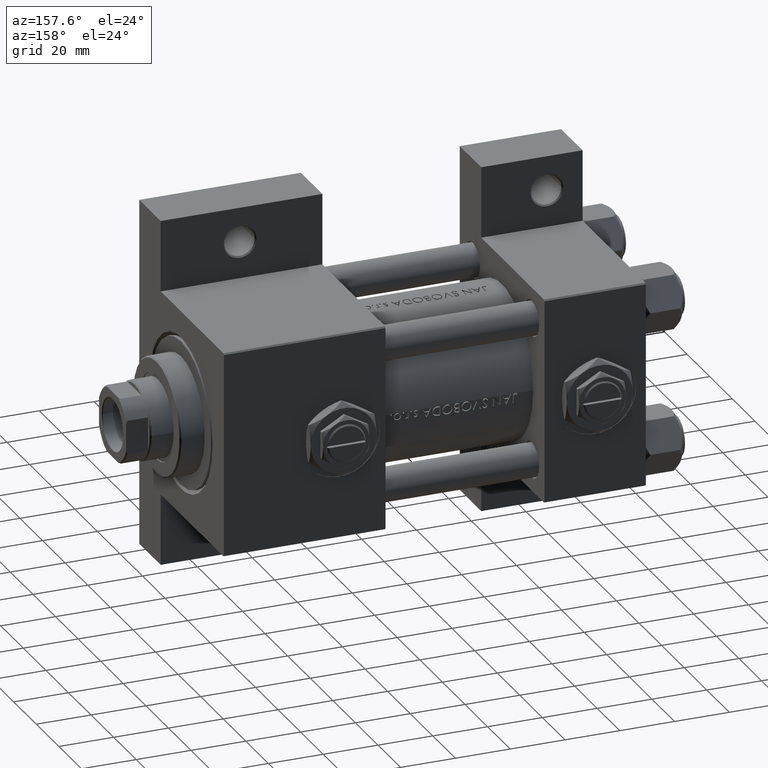
[diagram: clean part render]
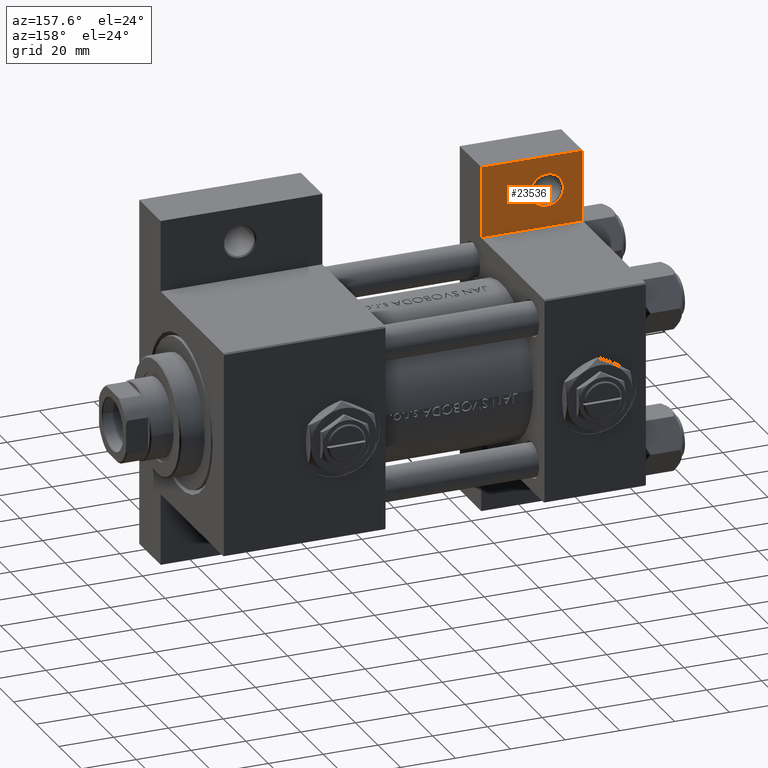
[diagram: same view with one face highlighted and labeled with its STEP entity id]
A machine part, auxiliary view. The second image highlights one B-rep face of the part: STEP entity #23536.
In plain terms, the highlighted planar face has unit normal (0, -1, 0).
Its self-contained STEP definition (entity closure, byte-faithful):
#996 = CARTESIAN_POINT ( 'NONE',  ( 3.977209754999744250E-16, -63.49999999999998579, -18.50000000000000355 ) ) ;
#1051 = VERTEX_POINT ( 'NONE', #30944 ) ;
#2217 = ORIENTED_EDGE ( 'NONE', *, *, #26081, .T. ) ;
#2985 = VERTEX_POINT ( 'NONE', #38633 ) ;
#3518 = DIRECTION ( 'NONE',  ( 0.000000000000000000, 0.000000000000000000, -1.000000000000000000 ) ) ;
#4587 = VERTEX_POINT ( 'NONE', #27437 ) ;
#4836 = VECTOR ( 'NONE', #5247, 1000.000000000000000 ) ;
#4950 = LINE ( 'NONE', #996, #36646 ) ;
#5021 = LINE ( 'NONE', #39708, #17694 ) ;
#5247 = DIRECTION ( 'NONE',  ( -0.000000000000000000, 1.000000000000000000, 0.000000000000000000 ) ) ;
#5585 = AXIS2_PLACEMENT_3D ( 'NONE', #45420, #3518, #19404 ) ;
#6887 = CARTESIAN_POINT ( 'NONE',  ( 37.00000000000000000, -37.50000000000000000, -18.50000000000000355 ) ) ;
#7971 = CIRCLE ( 'NONE', #5585, 5.999500000000050015 ) ;
#8118 = EDGE_CURVE ( 'NONE', #4587, #1051, #7971, .T. ) ;
#8231 = EDGE_CURVE ( 'NONE', #2985, #48045, #12949, .T. ) ;
#12813 = CARTESIAN_POINT ( 'NONE',  ( 12.99999999999999822, -51.00000000000001421, -18.50000000000000000 ) ) ;
#12949 = LINE ( 'NONE', #27334, #4836 ) ;
#13282 = DIRECTION ( 'NONE',  ( -1.000000000000000000, 0.000000000000000000, 0.000000000000000000 ) ) ;
#13448 = DIRECTION ( 'NONE',  ( 1.000000000000000000, 0.000000000000000000, 0.000000000000000000 ) ) ;
#13934 = VERTEX_POINT ( 'NONE', #28978 ) ;
#14800 = CARTESIAN_POINT ( 'NONE',  ( 3.977209754999747208E-16, -63.50000000000000000, -18.50000000000000355 ) ) ;
#15625 = ORIENTED_EDGE ( 'NONE', *, *, #35710, .T. ) ;
#16597 = FACE_BOUND ( 'NONE', #20378, .T. ) ;
#17141 = ORIENTED_EDGE ( 'NONE', *, *, #27856, .T. ) ;
#17694 = VECTOR ( 'NONE', #13448, 1000.000000000000000 ) ;
#19404 = DIRECTION ( 'NONE',  ( -1.000000000000000000, 0.000000000000000000, 0.000000000000000000 ) ) ;
#20378 = EDGE_LOOP ( 'NONE', ( #17141, #31050 ) ) ;
#20556 = PLANE ( 'NONE',  #32487 ) ;
#20799 = DIRECTION ( 'NONE',  ( -1.000000000000000000, 0.000000000000000000, -0.000000000000000000 ) ) ;
#23536 = ADVANCED_FACE ( 'NONE', ( #16597, #31227 ), #20556, .F. ) ;
#23553 = DIRECTION ( 'NONE',  ( 4.278042683914906889E-17, -1.000000000000000000, 0.000000000000000000 ) ) ;
#24514 = CARTESIAN_POINT ( 'NONE',  ( 0.000000000000000000, 0.000000000000000000, -18.50000000000000000 ) ) ;
#26081 = EDGE_CURVE ( 'NONE', #48045, #13934, #34087, .T. ) ;
#26945 = DIRECTION ( 'NONE',  ( -1.000000000000000000, 0.000000000000000000, 0.000000000000000000 ) ) ;
#27334 = CARTESIAN_POINT ( 'NONE',  ( 37.00000000000000000, -63.49999999999998579, -18.50000000000000355 ) ) ;
#27437 = CARTESIAN_POINT ( 'NONE',  ( 7.000499999999947320, -51.00000000000001421, -18.50000000000000000 ) ) ;
#27856 = EDGE_CURVE ( 'NONE', #1051, #4587, #41330, .T. ) ;
#28978 = CARTESIAN_POINT ( 'NONE',  ( -7.145701223179004046E-16, -37.50000000000000711, -18.50000000000000355 ) ) ;
#29313 = ORIENTED_EDGE ( 'NONE', *, *, #35014, .T. ) ;
#30944 = CARTESIAN_POINT ( 'NONE',  ( 18.99950000000004735, -51.00000000000001421, -18.50000000000000000 ) ) ;
#31050 = ORIENTED_EDGE ( 'NONE', *, *, #8118, .T. ) ;
#31227 = FACE_OUTER_BOUND ( 'NONE', #34442, .T. ) ;
#31707 = DIRECTION ( 'NONE',  ( 0.000000000000000000, 0.000000000000000000, -1.000000000000000000 ) ) ;
#32487 = AXIS2_PLACEMENT_3D ( 'NONE', #24514, #31707, #20799 ) ;
#34087 = LINE ( 'NONE', #39289, #48398 ) ;
#34442 = EDGE_LOOP ( 'NONE', ( #41083, #2217, #29313, #15625 ) ) ;
#35014 = EDGE_CURVE ( 'NONE', #13934, #40956, #4950, .T. ) ;
#35710 = EDGE_CURVE ( 'NONE', #40956, #2985, #5021, .T. ) ;
#36646 = VECTOR ( 'NONE', #23553, 1000.000000000000000 ) ;
#38633 = CARTESIAN_POINT ( 'NONE',  ( 37.00000000000000000, -63.50000000000000000, -18.50000000000000355 ) ) ;
#39289 = CARTESIAN_POINT ( 'NONE',  ( -7.145701223179000102E-16, -37.50000000000001421, -18.49999999999999645 ) ) ;
#39708 = CARTESIAN_POINT ( 'NONE',  ( 3.977209754999747208E-16, -63.50000000000000000, -18.50000000000000355 ) ) ;
#40523 = AXIS2_PLACEMENT_3D ( 'NONE', #12813, #41807, #26945 ) ;
#40956 = VERTEX_POINT ( 'NONE', #14800 ) ;
#41083 = ORIENTED_EDGE ( 'NONE', *, *, #8231, .T. ) ;
#41330 = CIRCLE ( 'NONE', #40523, 5.999500000000050015 ) ;
#41807 = DIRECTION ( 'NONE',  ( 0.000000000000000000, 0.000000000000000000, -1.000000000000000000 ) ) ;
#45420 = CARTESIAN_POINT ( 'NONE',  ( 12.99999999999999822, -51.00000000000001421, -18.50000000000000000 ) ) ;
#48045 = VERTEX_POINT ( 'NONE', #6887 ) ;
#48398 = VECTOR ( 'NONE', #13282, 1000.000000000000000 ) ;